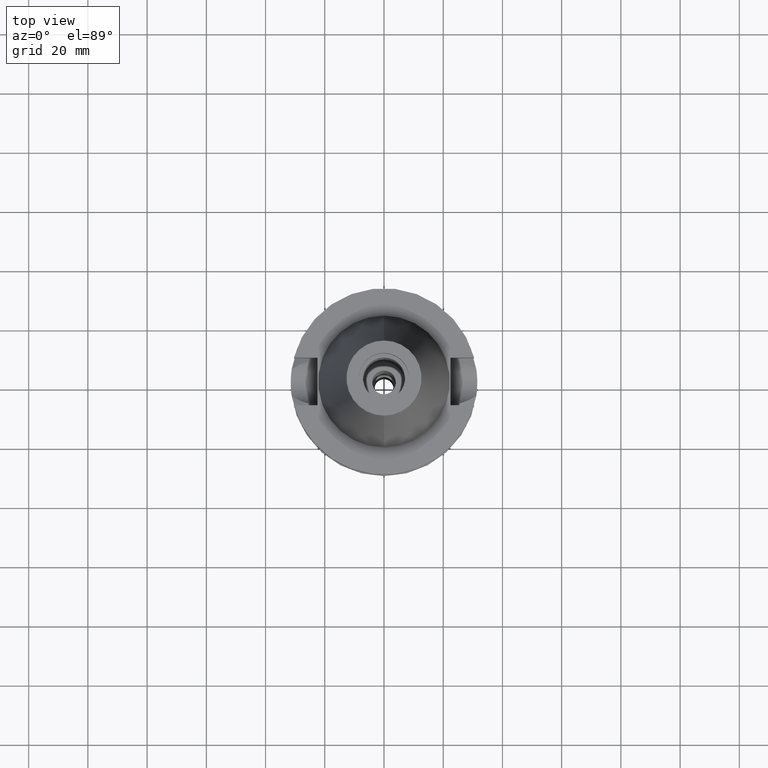
[diagram: clean part render]
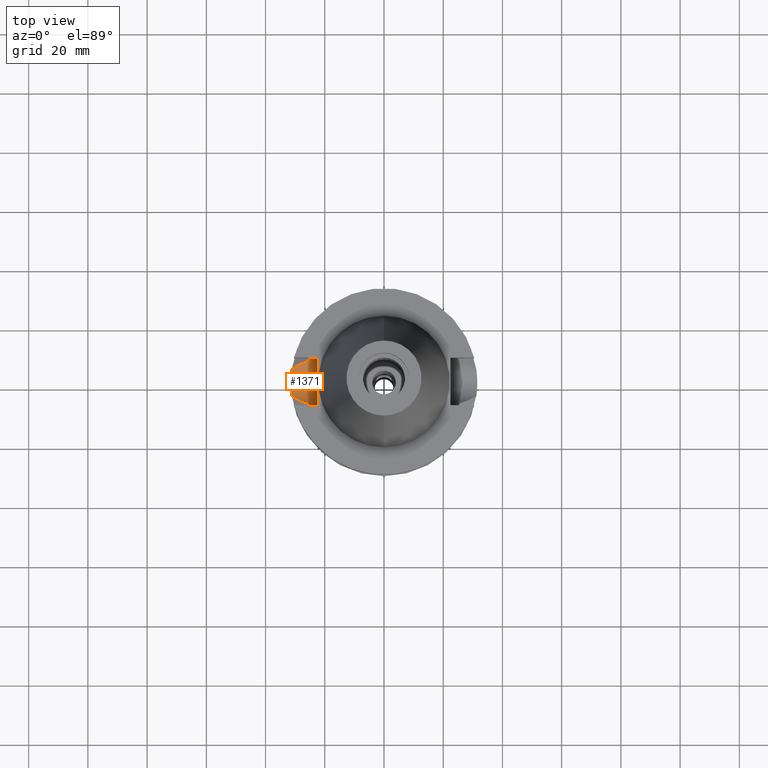
[diagram: same view with one face highlighted and labeled with its STEP entity id]
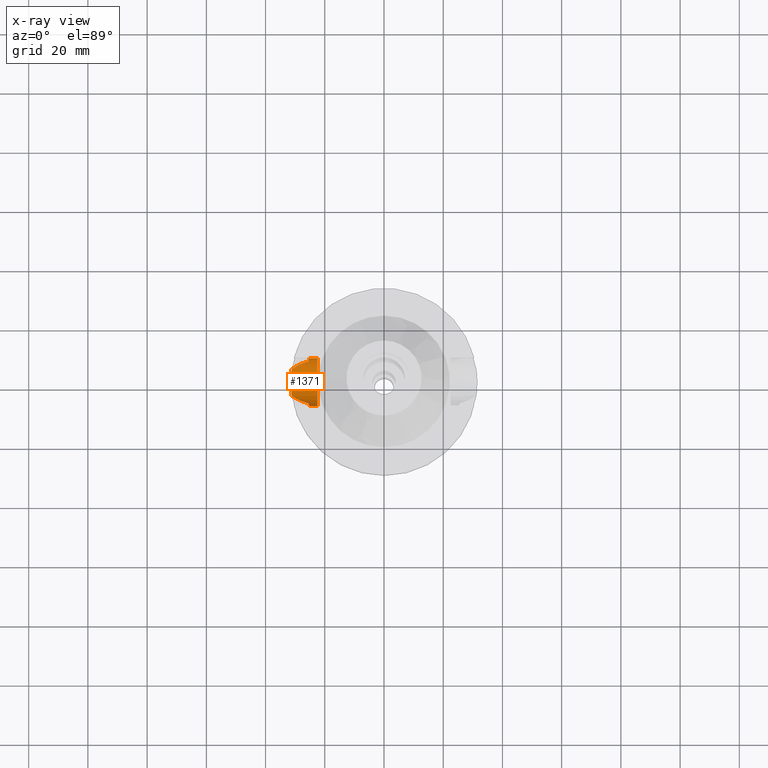
[diagram: x-ray of the same camera — body ghosted, the highlighted face saturated]
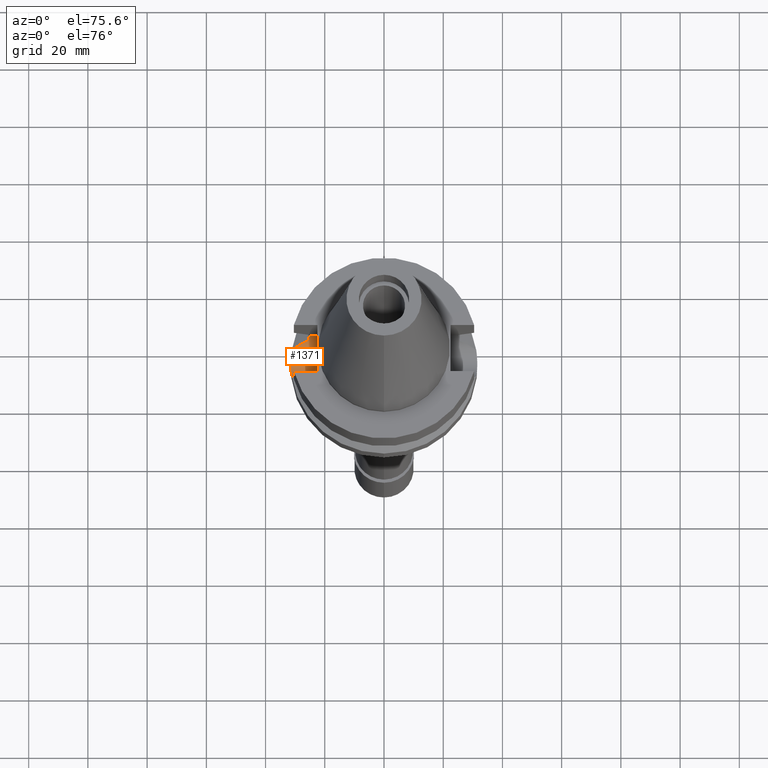
[diagram: same view with one face highlighted and labeled with its STEP entity id]
A machine part, top view. The second image highlights one B-rep face of the part: STEP entity #1371.
The next image is the same camera in x-ray: the body ghosted, the highlighted face saturated — about 0% of this face is hidden behind the body in this view.
A second angle (auxiliary view) of the same face is appended — the face is thin or edge-on in the first view.
In plain terms, the highlighted cylindrical surface (edge-blend (fillet) strip) has radius 8.05 mm, axis along (-1, 0, 0).
Its self-contained STEP definition (entity closure, byte-faithful):
#71 = CARTESIAN_POINT ( 'NONE',  ( -25.31652055493196585, 7.831184758209014163, -16.81426458571019467 ) ) ;
#79 = ORIENTED_EDGE ( 'NONE', *, *, #2309, .T. ) ;
#99 = CARTESIAN_POINT ( 'NONE',  ( -31.39943895197727031, 2.522230831061436085, -22.59723488500583954 ) ) ;
#120 = ORIENTED_EDGE ( 'NONE', *, *, #2575, .T. ) ;
#169 = AXIS2_PLACEMENT_3D ( 'NONE', #452, #1141, #913 ) ;
#174 = VERTEX_POINT ( 'NONE', #2409 ) ;
#199 = VECTOR ( 'NONE', #2313, 1000.000000000000000 ) ;
#298 = ORIENTED_EDGE ( 'NONE', *, *, #2105, .T. ) ;
#317 = B_SPLINE_CURVE_WITH_KNOTS ( 'NONE', 3,
 ( #1204, #3177, #1076, #3076, #1318, #1589, #2338, #1575, #71, #2318, #2549, #1301, #1090, #2095 ),
 .UNSPECIFIED., .F., .F.,
 ( 4, 2, 2, 1, 1, 2, 2, 4 ),
 ( 0.0000000000000000000, 0.2499999999999861222, 0.3749999999999799050, 0.4374999999999779066, 0.4687499999999755196, 0.4843749999999743538, 0.4999999999999731326, 1.000000000000000000 ),
 .UNSPECIFIED. ) ;
#341 = CARTESIAN_POINT ( 'NONE',  ( -31.49262578728777839, -0.7853332988177940122, -22.97131159560626301 ) ) ;
#358 = VERTEX_POINT ( 'NONE', #507 ) ;
#388 = CARTESIAN_POINT ( 'NONE',  ( -31.46339051499590767, 1.567929425034269908, -22.85564424900722358 ) ) ;
#404 = VERTEX_POINT ( 'NONE', #2266 ) ;
#412 = CARTESIAN_POINT ( 'NONE',  ( -31.17899877608999759, 4.485536235554000051, -21.63449434733000132 ) ) ;
#425 = CARTESIAN_POINT ( 'NONE',  ( -31.17899877608999759, -4.485536235554000051, -21.63449434733000132 ) ) ;
#452 = CARTESIAN_POINT ( 'NONE',  ( -31.50000000000000000, 0.0000000000000000000, -14.94999999999999929 ) ) ;
#498 = EDGE_CURVE ( 'NONE', #404, #2239, #1308, .T. ) ;
#507 = CARTESIAN_POINT ( 'NONE',  ( -25.53175183775000079, 7.097862220092999941, -18.74774300138999905 ) ) ;
#525 = CARTESIAN_POINT ( 'NONE',  ( -25.24772266958000344, 8.050000000000000711, -14.94999999999999929 ) ) ;
#560 = CARTESIAN_POINT ( 'NONE',  ( -25.24772266958000344, -8.050000000000000711, -14.94999999999999929 ) ) ;
#601 = VERTEX_POINT ( 'NONE', #1446 ) ;
#623 = CARTESIAN_POINT ( 'NONE',  ( -31.22683168101252704, 4.153049325257791580, -21.85760502803080385 ) ) ;
#624 = ORIENTED_EDGE ( 'NONE', *, *, #1741, .F. ) ;
#631 = AXIS2_PLACEMENT_3D ( 'NONE', #2304, #3011, #1342 ) ;
#634 = CARTESIAN_POINT ( 'NONE',  ( -28.56975280509945136, 6.011966297645253476, -20.30344802510319013 ) ) ;
#636 = CARTESIAN_POINT ( 'NONE',  ( -25.34387967354902926, -7.742345491371905197, -17.15662736176142644 ) ) ;
#663 = CARTESIAN_POINT ( 'NONE',  ( -25.32844325893329085, -7.792538688759382381, -16.96970524096600386 ) ) ;
#676 = CARTESIAN_POINT ( 'NONE',  ( -28.65199595560820711, 5.974251600604381096, -20.34545455454947316 ) ) ;
#696 = CARTESIAN_POINT ( 'NONE',  ( -28.65085385093258807, -5.974861497290302026, -20.34478786670810990 ) ) ;
#707 = B_SPLINE_CURVE_WITH_KNOTS ( 'NONE', 3,
 ( #425, #2896, #1374, #3101, #1401, #2398, #2657, #938, #2364, #696, #2168, #3150, #2589, #1132, #1118, #2106 ),
 .UNSPECIFIED., .F., .F.,
 ( 4, 2, 2, 1, 1, 1, 1, 2, 2, 4 ),
 ( 0.0000000000000000000, 0.2500000000000053291, 0.3750000000000077161, 0.4375000000000083822, 0.4687500000000086597, 0.4843750000000084932, 0.4921875000000087153, 0.4960937500000091038, 0.5000000000000095479, 1.000000000000000000 ),
 .UNSPECIFIED. ) ;
#742 = VERTEX_POINT ( 'NONE', #1949 ) ;
#802 = CARTESIAN_POINT ( 'NONE',  ( -31.27140679686819169, 3.805539103220627606, -22.05493847060270696 ) ) ;
#829 = CARTESIAN_POINT ( 'NONE',  ( -31.44176131236640970, -1.951903107895862188, -22.76972074901527776 ) ) ;
#873 = CARTESIAN_POINT ( 'NONE',  ( -26.13322876435397291, 6.932526519693119837, -19.05675022516903638 ) ) ;
#882 = EDGE_LOOP ( 'NONE', ( #79, #2496, #120, #3171, #298, #1648, #624, #1251 ) ) ;
#906 = CARTESIAN_POINT ( 'NONE',  ( -28.63958547110775044, 5.979968598791697509, -20.33911562996539502 ) ) ;
#913 = DIRECTION ( 'NONE',  ( 0.0000000000000000000, 0.0000000000000000000, -1.000000000000000000 ) ) ;
#921 = CARTESIAN_POINT ( 'NONE',  ( -27.47916887503200556, 6.467267303004141432, -19.74623473011103414 ) ) ;
#924 = CARTESIAN_POINT ( 'NONE',  ( -25.27269246206562769, -7.973290322419560816, -16.24535685341755453 ) ) ;
#927 = VECTOR ( 'NONE', #2037, 1000.000000000000000 ) ;
#938 = CARTESIAN_POINT ( 'NONE',  ( -28.81529472217675547, -5.898185557523848210, -20.42879402059216787 ) ) ;
#942 = CARTESIAN_POINT ( 'NONE',  ( -25.24772266957998923, -8.049999999999995381, -15.58999073686769954 ) ) ;
#1065 = CARTESIAN_POINT ( 'NONE',  ( -31.44181935878845380, 1.951321312786099993, -22.76994941665888561 ) ) ;
#1076 = CARTESIAN_POINT ( 'NONE',  ( -25.25396593744604345, 8.030896968437133410, -15.59377931139637674 ) ) ;
#1080 = CARTESIAN_POINT ( 'NONE',  ( -31.50000885681816243, -0.3932018080066230770, -23.00009118396095076 ) ) ;
#1090 = CARTESIAN_POINT ( 'NONE',  ( -25.43788636145657023, 7.435506143394215783, -18.11669712856984660 ) ) ;
#1118 = CARTESIAN_POINT ( 'NONE',  ( -26.70420777404188328, -6.775574174050205123, -19.35008922259093467 ) ) ;
#1132 = CARTESIAN_POINT ( 'NONE',  ( -27.72546279871751196, -6.397771346227044020, -19.87205214436838929 ) ) ;
#1134 = CARTESIAN_POINT ( 'NONE',  ( -25.24772266958000344, -8.050000000000000711, -14.94999999999999929 ) ) ;
#1141 = DIRECTION ( 'NONE',  ( -1.000000000000000000, 0.0000000000000000000, 0.0000000000000000000 ) ) ;
#1147 = CARTESIAN_POINT ( 'NONE',  ( -26.69526763949996706, 6.752325062880029982, -19.34502696971486913 ) ) ;
#1166 = CARTESIAN_POINT ( 'NONE',  ( -25.32550226136659433, -7.802082245156309881, -16.93251888162864205 ) ) ;
#1204 = CARTESIAN_POINT ( 'NONE',  ( -25.24772266958000344, 8.050000000000000711, -14.94999999999999929 ) ) ;
#1251 = ORIENTED_EDGE ( 'NONE', *, *, #2820, .T. ) ;
#1301 = CARTESIAN_POINT ( 'NONE',  ( -25.36818304353073827, 7.663708172037789979, -17.48836484317124729 ) ) ;
#1303 = CARTESIAN_POINT ( 'NONE',  ( -31.35744702332718248, -3.088306468757432199, -22.42610245659388468 ) ) ;
#1308 = LINE ( 'NONE', #2601, #199 ) ;
#1318 = CARTESIAN_POINT ( 'NONE',  ( -25.28049982587671352, 7.946985634364632567, -16.24435369794754536 ) ) ;
#1342 = DIRECTION ( 'NONE',  ( 0.0000000000000000000, 0.0000000000000000000, -1.000000000000000000 ) ) ;
#1360 = CARTESIAN_POINT ( 'NONE',  ( -25.53175183775000079, 7.097862220092999941, -18.74774300138999905 ) ) ;
#1371 = ADVANCED_FACE ( 'NONE', ( #1447 ), #3126, .F. ) ;
#1374 = CARTESIAN_POINT ( 'NONE',  ( -30.43266850696453929, -5.016882435218970038, -21.25443968025212982 ) ) ;
#1388 = CARTESIAN_POINT ( 'NONE',  ( -30.48766353188994316, 5.010030609098905963, -21.28253974977739915 ) ) ;
#1401 = CARTESIAN_POINT ( 'NONE',  ( -29.56193868950080983, -5.521799860240211189, -20.81015263983692165 ) ) ;
#1440 = CARTESIAN_POINT ( 'NONE',  ( -25.39164478449761475, -7.584820969893641518, -17.65194245036902387 ) ) ;
#1446 = CARTESIAN_POINT ( 'NONE',  ( -31.17899877608999759, -4.485536235554000051, -21.63449434733000132 ) ) ;
#1447 = FACE_OUTER_BOUND ( 'NONE', #882, .T. ) ;
#1545 = CARTESIAN_POINT ( 'NONE',  ( -31.34957679365706085, 3.080360595628370834, -22.38998591285069750 ) ) ;
#1561 = CARTESIAN_POINT ( 'NONE',  ( -31.27471953632840496, -3.820180454319141550, -22.08097201807406407 ) ) ;
#1575 = CARTESIAN_POINT ( 'NONE',  ( -25.31205759391835386, 7.845621557312759009, -16.75326793501877631 ) ) ;
#1577 = CARTESIAN_POINT ( 'NONE',  ( -31.33120162170804335, 3.261756837996632630, -22.31227277726726044 ) ) ;
#1589 = CARTESIAN_POINT ( 'NONE',  ( -25.29454717857531421, 7.902012029756503075, -16.48868902759153698 ) ) ;
#1627 = CARTESIAN_POINT ( 'NONE',  ( -25.53175183775000079, -7.097862220092999941, -18.74774300138999905 ) ) ;
#1648 = ORIENTED_EDGE ( 'NONE', *, *, #2787, .T. ) ;
#1673 = VERTEX_POINT ( 'NONE', #2264 ) ;
#1741 = EDGE_CURVE ( 'NONE', #601, #2272, #2517, .T. ) ;
#1824 = CARTESIAN_POINT ( 'NONE',  ( -31.38376273586889553, 2.709985807931204249, -22.53275648635440476 ) ) ;
#1894 = CARTESIAN_POINT ( 'NONE',  ( -28.47107044610122628, 6.056631560319087448, -20.25304762094663502 ) ) ;
#1949 = CARTESIAN_POINT ( 'NONE',  ( -22.50000000000000000, 8.050000000000000711, -14.94999999999999929 ) ) ;
#1976 = LINE ( 'NONE', #525, #927 ) ;
#2023 = CIRCLE ( 'NONE', #631, 8.050000000000000711 ) ;
#2037 = DIRECTION ( 'NONE',  ( 1.000000000000000000, 1.486911607147000170E-14, -1.680856599384000216E-14 ) ) ;
#2095 = CARTESIAN_POINT ( 'NONE',  ( -25.53175183775000079, 7.097862220092999941, -18.74774300138999905 ) ) ;
#2105 = EDGE_CURVE ( 'NONE', #1673, #358, #317, .T. ) ;
#2106 = CARTESIAN_POINT ( 'NONE',  ( -25.53175183775000079, -7.097862220092999941, -18.74774300138999905 ) ) ;
#2168 = CARTESIAN_POINT ( 'NONE',  ( -28.62716605461984187, -5.985750712489448233, -20.33268686339392062 ) ) ;
#2171 = CARTESIAN_POINT ( 'NONE',  ( -25.44392473217590123, -7.408251102513281339, -18.11706870842561656 ) ) ;
#2239 = VERTEX_POINT ( 'NONE', #560 ) ;
#2264 = CARTESIAN_POINT ( 'NONE',  ( -25.24772266958000344, 8.050000000000000711, -14.94999999999999929 ) ) ;
#2266 = CARTESIAN_POINT ( 'NONE',  ( -22.50000000000000000, -8.050000000000000711, -14.94999999999999929 ) ) ;
#2272 = VERTEX_POINT ( 'NONE', #412 ) ;
#2293 = B_SPLINE_CURVE_WITH_KNOTS ( 'NONE', 3,
 ( #1627, #2851, #2171, #1440, #2433, #2899, #636, #2608, #663, #1166, #3134, #924, #942, #1134 ),
 .UNSPECIFIED., .F., .F.,
 ( 4, 2, 2, 1, 1, 2, 2, 4 ),
 ( 0.0000000000000000000, 0.2500000000000232592, 0.3750000000000336398, 0.4375000000000388578, 0.4687500000000429101, 0.4843750000000435763, 0.5000000000000441869, 1.000000000000000000 ),
 .UNSPECIFIED. ) ;
#2296 = CARTESIAN_POINT ( 'NONE',  ( -31.46351279778429699, -1.565116542638131047, -22.85612983544853449 ) ) ;
#2304 = CARTESIAN_POINT ( 'NONE',  ( -22.50000000000000000, 0.0000000000000000000, -14.94999999999999929 ) ) ;
#2309 = EDGE_CURVE ( 'NONE', #174, #2239, #2293, .T. ) ;
#2313 = DIRECTION ( 'NONE',  ( -1.000000000000000000, 1.551559937893000172E-14, 1.680856599384000216E-14 ) ) ;
#2318 = CARTESIAN_POINT ( 'NONE',  ( -25.31954463780459008, 7.821394976191520243, -16.85491936552298142 ) ) ;
#2338 = CARTESIAN_POINT ( 'NONE',  ( -25.30215616128705136, 7.877576232086798136, -16.61085564871959264 ) ) ;
#2350 = CARTESIAN_POINT ( 'NONE',  ( -28.09298185318404606, 6.220716661880192788, -20.05993759178296898 ) ) ;
#2364 = CARTESIAN_POINT ( 'NONE',  ( -28.70592913238448318, -5.949388501037183197, -20.37292347002831860 ) ) ;
#2398 = CARTESIAN_POINT ( 'NONE',  ( -29.21029586838360359, -5.704464064878708385, -20.63057042885585091 ) ) ;
#2404 = B_SPLINE_CURVE_WITH_KNOTS ( 'NONE', 3,
 ( #1360, #873, #1147, #921, #2866, #2350, #2850, #1894, #634, #3119, #906, #676, #3131, #1388, #2607 ),
 .UNSPECIFIED., .F., .F.,
 ( 4, 2, 2, 1, 1, 1, 2, 2, 4 ),
 ( 0.0000000000000000000, 0.2499999999999996669, 0.3749999999999998335, 0.4374999999999993339, 0.4687499999999993894, 0.4843749999999997224, 0.4921874999999998890, 0.5000000000000001110, 1.000000000000000000 ),
 .UNSPECIFIED. ) ;
#2409 = CARTESIAN_POINT ( 'NONE',  ( -25.53175183775000079, -7.097862220092999941, -18.74774300138999905 ) ) ;
#2433 = CARTESIAN_POINT ( 'NONE',  ( -25.37572817766068312, -7.637723572221430501, -17.49814693646531083 ) ) ;
#2496 = ORIENTED_EDGE ( 'NONE', *, *, #498, .F. ) ;
#2517 = B_SPLINE_CURVE_WITH_KNOTS ( 'NONE', 3,
 ( #2781, #1561, #1303, #829, #2296, #341, #1080, #3064, #2840, #388, #1065, #99, #1824, #1545, #1577, #802, #623, #2536 ),
 .UNSPECIFIED., .F., .F.,
 ( 4, 2, 2, 2, 2, 2, 2, 2, 4 ),
 ( 0.0000000000000000000, 0.2500000000000001665, 0.3750000000000000555, 0.5000000000000000000, 0.6250000000000001110, 0.7500000000000000000, 0.8125000000000000000, 0.8749999999999998890, 1.000000000000000000 ),
 .UNSPECIFIED. ) ;
#2536 = CARTESIAN_POINT ( 'NONE',  ( -31.17899877608999759, 4.485536235554000051, -21.63449434733000132 ) ) ;
#2549 = CARTESIAN_POINT ( 'NONE',  ( -25.32121872273630814, 7.815971166074790588, -16.87703378351024952 ) ) ;
#2575 = EDGE_CURVE ( 'NONE', #404, #742, #2023, .T. ) ;
#2589 = CARTESIAN_POINT ( 'NONE',  ( -28.60231420953514814, -5.997142292881520120, -20.31999124967058634 ) ) ;
#2601 = CARTESIAN_POINT ( 'NONE',  ( -22.50000000000000000, -8.050000000000000711, -14.94999999999999929 ) ) ;
#2607 = CARTESIAN_POINT ( 'NONE',  ( -31.17899877608999759, 4.485536235554000051, -21.63449434733000132 ) ) ;
#2608 = CARTESIAN_POINT ( 'NONE',  ( -25.33292553852032825, -7.777985707516963387, -17.02558215515367834 ) ) ;
#2657 = CARTESIAN_POINT ( 'NONE',  ( -29.03088600931523544, -5.794770687559532618, -20.53892968229976290 ) ) ;
#2781 = CARTESIAN_POINT ( 'NONE',  ( -31.17899877608999759, -4.485536235554000051, -21.63449434733000132 ) ) ;
#2787 = EDGE_CURVE ( 'NONE', #358, #2272, #2404, .T. ) ;
#2820 = EDGE_CURVE ( 'NONE', #601, #174, #707, .T. ) ;
#2840 = CARTESIAN_POINT ( 'NONE',  ( -31.49264463731100250, 0.7852892009116748673, -22.97138455819568748 ) ) ;
#2850 = CARTESIAN_POINT ( 'NONE',  ( -28.27047057544614006, 6.145474988949596096, -20.15059735720136658 ) ) ;
#2851 = CARTESIAN_POINT ( 'NONE',  ( -25.48481820018465527, -7.266687417048224518, -18.43221401829536177 ) ) ;
#2866 = CARTESIAN_POINT ( 'NONE',  ( -27.73060977401151561, 6.369780939358543392, -19.87478453354328067 ) ) ;
#2896 = CARTESIAN_POINT ( 'NONE',  ( -30.82497203357930715, -4.754125224885824785, -21.45426147084064894 ) ) ;
#2899 = CARTESIAN_POINT ( 'NONE',  ( -25.35411833098896750, -7.708843546315279127, -17.27003765536344915 ) ) ;
#3011 = DIRECTION ( 'NONE',  ( 1.000000000000000000, 0.0000000000000000000, 0.0000000000000000000 ) ) ;
#3064 = CARTESIAN_POINT ( 'NONE',  ( -31.49999112722844785, 0.3946195965372648606, -23.00002780801114710 ) ) ;
#3076 = CARTESIAN_POINT ( 'NONE',  ( -25.27269574104416705, 7.971769474987705273, -16.08146184978236093 ) ) ;
#3101 = CARTESIAN_POINT ( 'NONE',  ( -29.78679804088626071, -5.397290095219017481, -20.92493948845820739 ) ) ;
#3119 = CARTESIAN_POINT ( 'NONE',  ( -28.61169862117097296, 5.992774173891450396, -20.32487203721276003 ) ) ;
#3126 = CYLINDRICAL_SURFACE ( 'NONE', #169, 8.050000000000000711 ) ;
#3131 = CARTESIAN_POINT ( 'NONE',  ( -29.65044953315264564, 5.512446871469410148, -20.85544962072233943 ) ) ;
#3134 = CARTESIAN_POINT ( 'NONE',  ( -25.32419265906723638, -7.806329682139816484, -16.91574545217585168 ) ) ;
#3150 = CARTESIAN_POINT ( 'NONE',  ( -28.61135550057534616, -5.993003987127207388, -20.32461000182327737 ) ) ;
#3169 = EDGE_CURVE ( 'NONE', #1673, #742, #1976, .T. ) ;
#3171 = ORIENTED_EDGE ( 'NONE', *, *, #3169, .F. ) ;
#3177 = CARTESIAN_POINT ( 'NONE',  ( -25.24772266958000699, 8.050000000000002487, -15.27000127569119847 ) ) ;